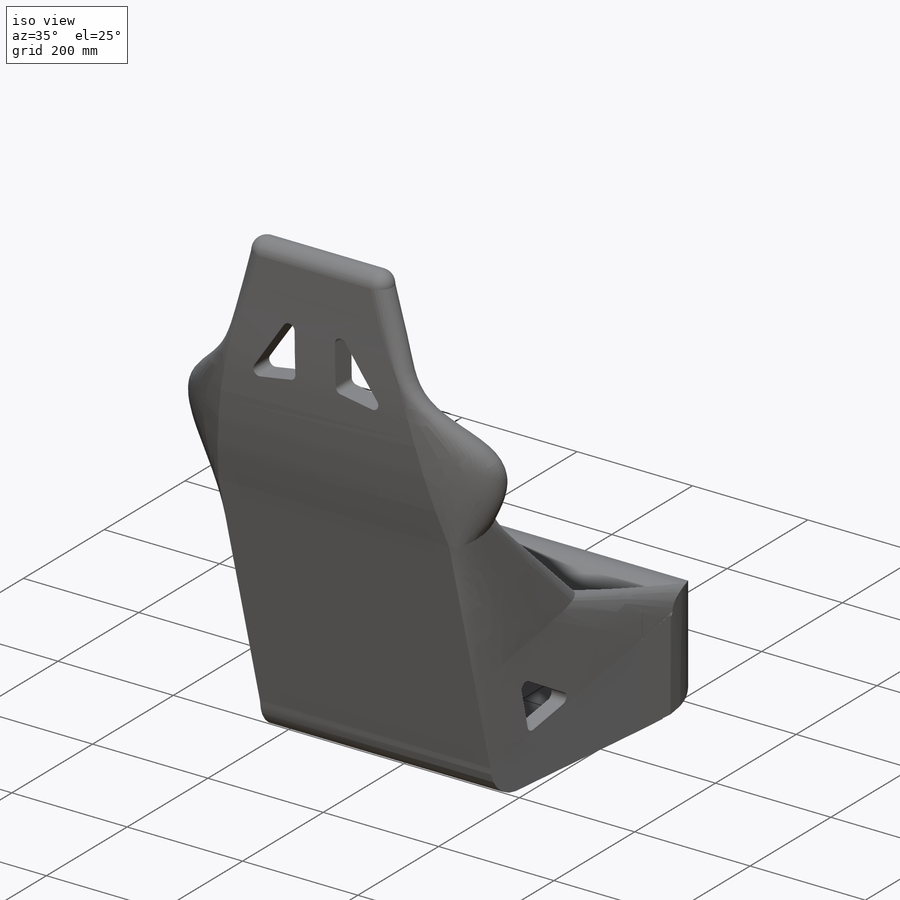
[diagram: iso view]
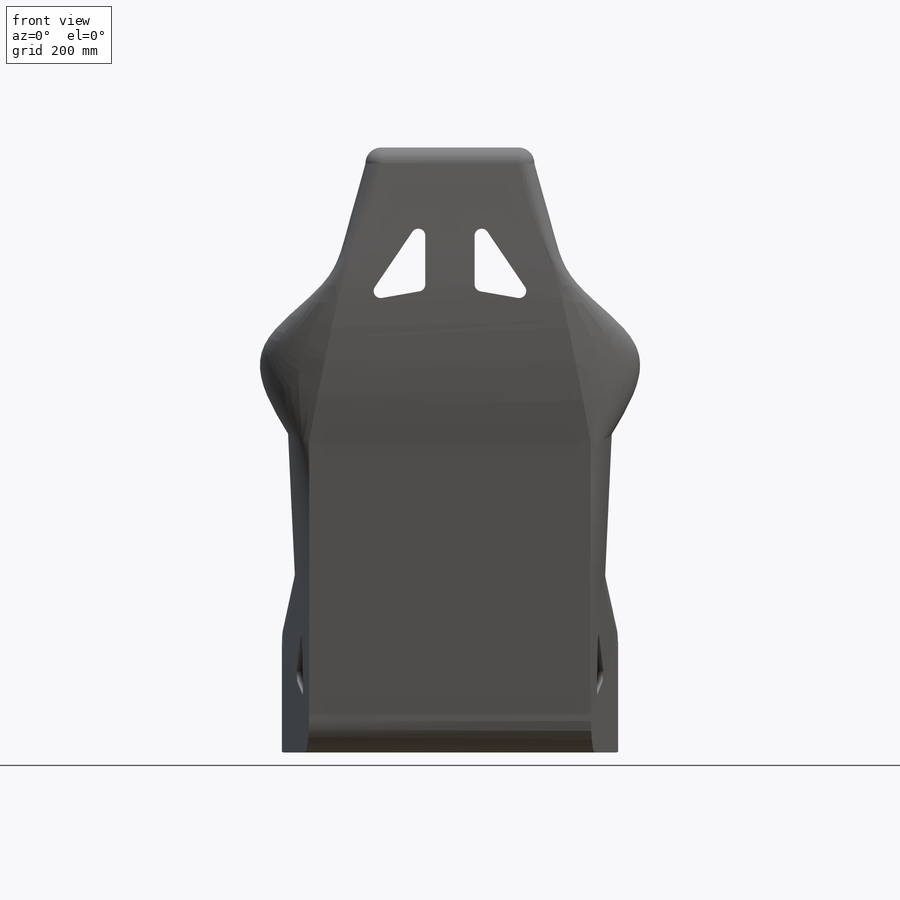
[diagram: front view]
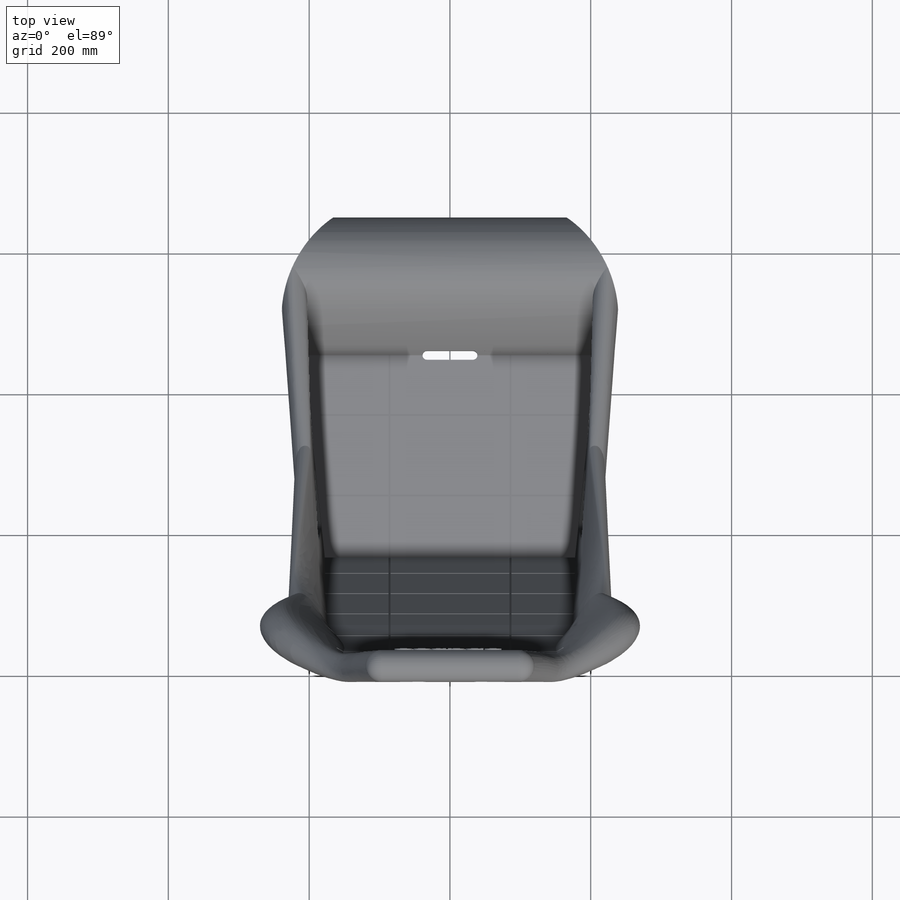
[diagram: top view]
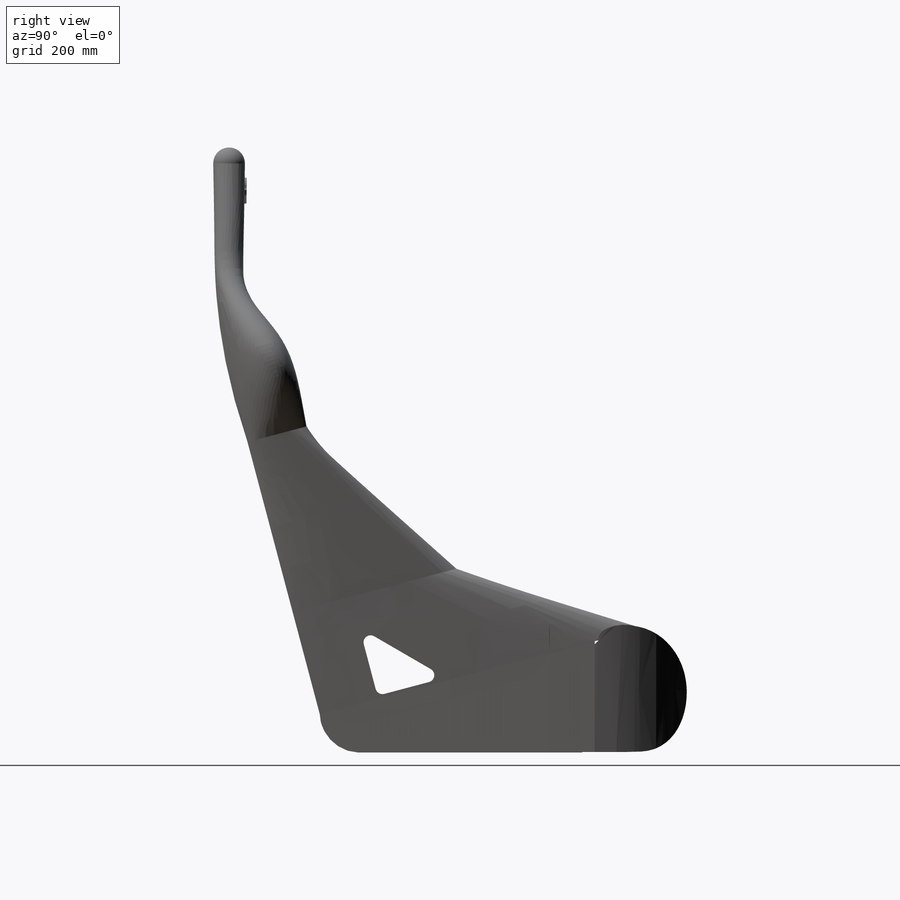
[diagram: right view]
SOLIDWORKS PART (.sldprt)
format: sldprt  version: not decoded by parser v0  size: 1,210,880 bytes
history: native  units: mm
features: sketch x40, cut_extrude x10, extrude x4, plane x3, material x1, revolve x1 (+8 scaffold rows collapsed)
feature tree (67):
  scaffold x8  (default folders/planes/origin — collapsed)
  material  "Material <not specified>"
  plane  "Plan de face"
  plane  "Plan de dessus"
  plane  "Plan de droite"
  sketch  "Sketch1"  dims[c1.D6=20.0mm c1.D1=615.0mm c1.D2=65.0mm c1.D3=150.0mm c1.D4=50.0mm c1.D5=400.0mm c2.D6=~836.972806mm c2.D7=40.0mm]
  sketch  "3DSketch3"
  sketch  "3DSketch4"
  sketch  "Sketch6"  dims[D1=195.0mm D2=45.0mm]
  sketch  "3DSketch5"  dims[D1=90.0mm]
  sketch  "Sketch7"  dims[D1=248.0mm D2=42.0mm]
  sketch  "3DSketch6"  dims[D1=153.0mm]
  sketch  "Sketch8"  dims[D1=40.0mm D2=295.0mm]
  sketch  "3DSketch7"  dims[D1=190.0mm]
  sketch  "Sketch9"  dims[c1.D1=200.0mm c1.D2=40.0mm c1.D3=160.0mm c2.D1=200.0mm c2.D2=40.0mm c2.D4=100.0mm]
  sketch  "3DSketch8"
  sketch  "3DSketch9"  dims[D1=50.0mm]
  sketch  "Sketch10"  dims[c1.D2=~92.684231mm c1.D1=~98.231931mm c2.D1=90.0deg c2.D2=375.0mm c2.D3=40.0mm c2.D4=150.0mm c3.D1=150.0mm c3.D2=520.0mm]
  sketch  "Sketch9<13>"
  sketch  "3DSketch11"  dims[D1=130.0mm]
  sketch  "Sketch13"  dims[D1=200.0mm D2=40.0mm]
  sketch  "3DSketch13"  dims[D1=250.0mm]
  sketch  "Sketch14"  dims[D1=200.0mm D2=240.0mm D3=40.0mm]
  sketch  "3DSketch14"  dims[D1=150.0mm]
  sketch  "Sketch15"  dims[D1=200.0mm D2=475.0mm D3=40.0mm]
  sketch  "Sketch17"  dims[D1=45.0mm]
  revolve  "Revolve7"  Angle=180deg
  sketch  "3DSketch15"
  sketch  "Sketch18"  dims[D1=80.0mm]
  extrude  "Boss-Extrude1"  Depth=480mm
  sketch  "Sketch19"
  sketch  "Sketch23"  dims[D1=40.0mm]
  sketch  "Sketch24"
  extrude  "Boss-Extrude8"  [1 undecoded]
  extrude  "Boss-Extrude13"  Depth=480mm
  sketch  "Sketch26"
  sketch  "Sketch27"
  cut_extrude  "Cut-Extrude2"  [1 undecoded]
  sketch  "3DSketch17"  dims[D1=600.0mm]
  sketch  "Sketch28"
  cut_extrude  "Cut-Extrude3"  [1 undecoded]
  sketch  "Sketch29"  dims[c1.D4=10.0mm c1.D1=~53.187535mm c2.D1=0.0deg c2.D2=100.0mm c2.D3=100.0mm]
  cut_extrude  "Cut-Extrude4"  Depth=1000mm
  sketch  "Sketch30"  dims[D5=10.0mm D1=35.0mm D2=85.0mm D3=15.0mm D4=110.0mm]
  cut_extrude  "Cut-Extrude5"  Depth=1000mm
  sketch  "Sketch31"
  cut_extrude  "Cut-Extrude6"  Depth=1000mm
  sketch  "3DSketch18"  dims[D1=0.0mm]
  sketch  "Sketch33"
  extrude  "Boss-Extrude14"  Depth=3mm
  cut_extrude  "Cut-Extrude7"  [1 undecoded]
  sketch  "Sketch34"  dims[D1=115.0mm D2=115.0mm D3=3.0mm D4=3.0mm]
  cut_extrude  "Cut-Extrude8"  Depth=2mm
  sketch  "Sketch35"  dims[D1=3.0mm D2=3.0mm]
  cut_extrude  "Cut-Extrude9"  Depth=2mm
  sketch  "3DSketch19"  dims[D1=10.0mm]
  sketch  "Sketch36"  dims[D1=3.0mm D2=5.0]
  cut_extrude  "Cut-Extrude10"  Depth=14mm
  sketch  "Sketch37"  dims[D1=3.0mm D2=3.0mm]
  cut_extrude  "Cut-Extrude11"  Depth=14mm
decode coverage: 39 of 55 modeling features carry decoded parameters
note: ~ marks probable driven/reference dimensions
note: 4 parameter values undecoded
summary: no parameter record found for 4 features
note: suppression state not decoded; provenance and decode notes live in map.json
